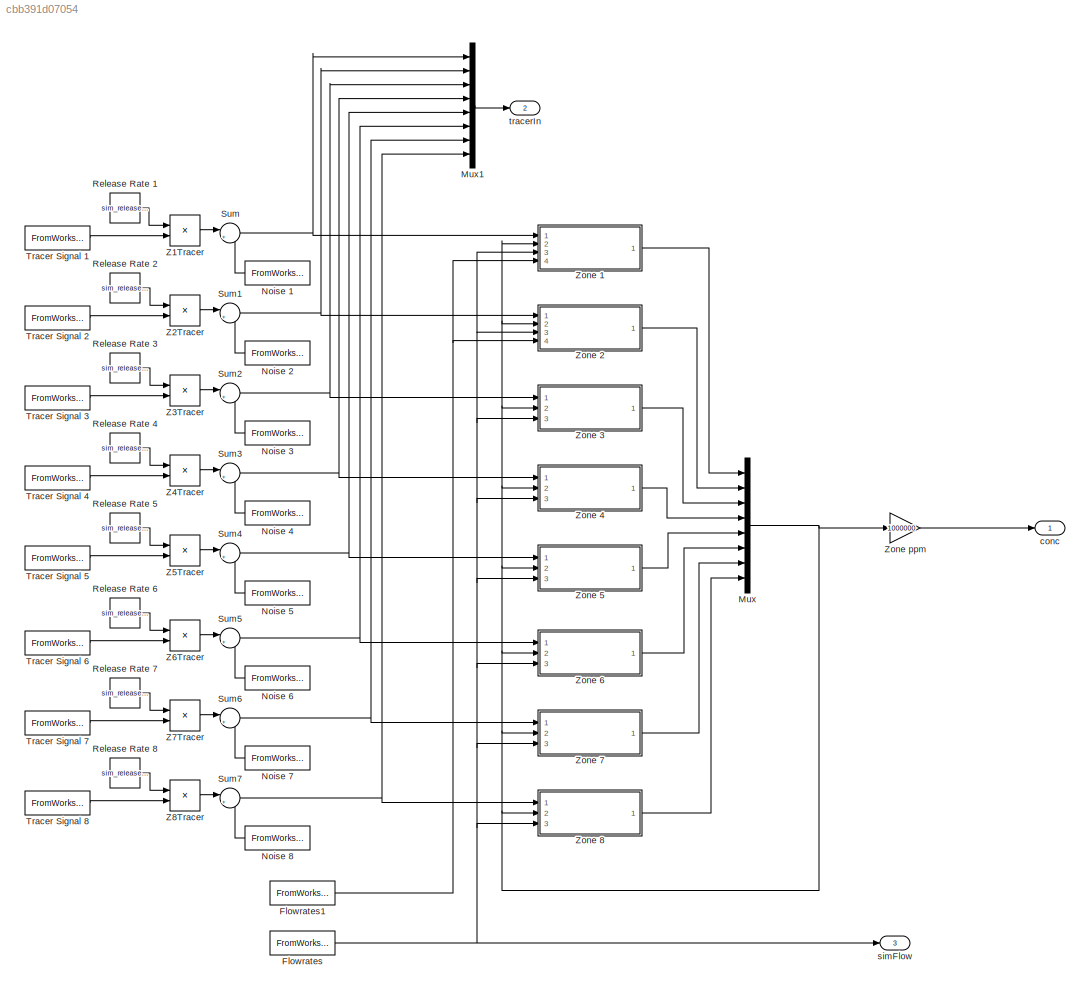
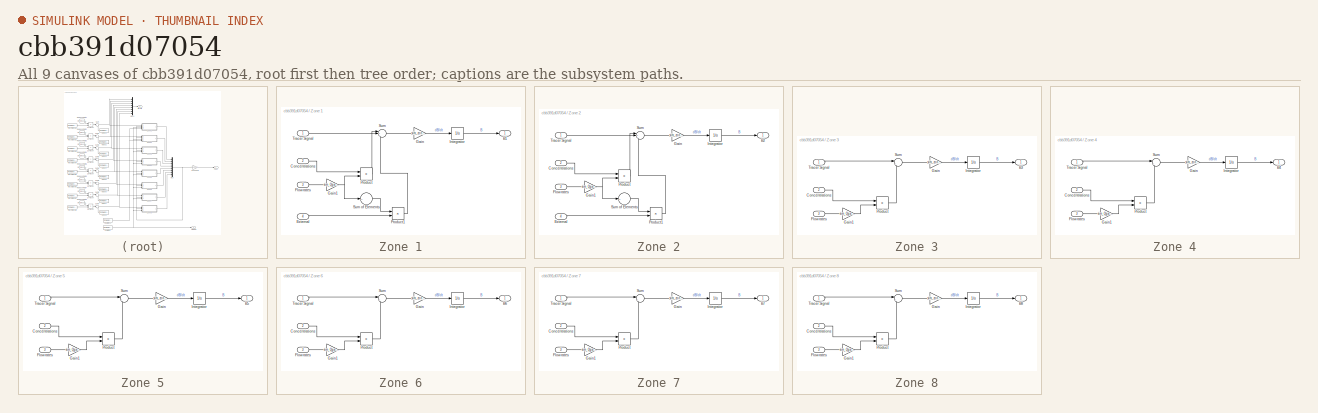
[diagram: thumbnail index - all 9 canvases of the model, root first then tree order]
MODEL slx_cbb391d07054
KIND model
CONFIG AbsTol = auto
CONFIG FixedStep = sim_stepSize
CONFIG MaxStep = auto
CONFIG MinStep = auto
CONFIG RelTol = auto
CONFIG SampleTimeConstraint = Unconstrained
CONFIG Solver = ode5
CONFIG SolverMode = Auto
CONFIG SolverName = ode5
CONFIG StartTime = 0.0
CONFIG StopTime = 10
BLOCK [FromWorkspace] Flowrates
  OutputAfterFinalValue = Holding final value
  SampleTime = 0
  VariableName = sim_Q
  ZeroCross = on
BLOCK [FromWorkspace] Flowrates1
  OutputAfterFinalValue = Holding final value
  SampleTime = 0
  VariableName = sim_external
  ZeroCross = on
BLOCK [Mux] Mux
  DisplayOption = bar
  Inputs = 8
  Ports = [8, 1]
BLOCK [Mux] Mux1
  DisplayOption = bar
  Inputs = 8
  Ports = [8, 1]
BLOCK [FromWorkspace] Noise 1
  Interpolate = off
  OutputAfterFinalValue = Holding final value
  SampleTime = 0
  VariableName = sim_nSchedule{1}
  ZeroCross = on
BLOCK [FromWorkspace] Noise 2
  Interpolate = off
  OutputAfterFinalValue = Holding final value
  SampleTime = 0
  VariableName = sim_nSchedule{2}
  ZeroCross = on
BLOCK [FromWorkspace] Noise 3
  Interpolate = off
  OutputAfterFinalValue = Holding final value
  SampleTime = 0
  VariableName = sim_nSchedule{3}
  ZeroCross = on
BLOCK [FromWorkspace] Noise 4 
  Interpolate = off
  OutputAfterFinalValue = Holding final value
  SampleTime = 0
  VariableName = sim_nSchedule{4}
  ZeroCross = on
BLOCK [FromWorkspace] Noise 5
  Interpolate = off
  OutputAfterFinalValue = Holding final value
  SampleTime = 0
  VariableName = sim_nSchedule{5}
  ZeroCross = on
BLOCK [FromWorkspace] Noise 6
  Interpolate = off
  OutputAfterFinalValue = Holding final value
  SampleTime = 0
  VariableName = sim_nSchedule{6}
  ZeroCross = on
BLOCK [FromWorkspace] Noise 7
  Interpolate = off
  OutputAfterFinalValue = Holding final value
  SampleTime = 0
  VariableName = sim_nSchedule{7}
  ZeroCross = on
BLOCK [FromWorkspace] Noise 8
  Interpolate = off
  OutputAfterFinalValue = Holding final value
  SampleTime = 0
  VariableName = sim_nSchedule{8}
  ZeroCross = on
BLOCK [Constant] Release Rate 1
  Value = sim_releaseRate(1)
BLOCK [Constant] Release Rate 2
  Value = sim_releaseRate(2)
BLOCK [Constant] Release Rate 3
  Value = sim_releaseRate(3)
BLOCK [Constant] Release Rate 4
  Value = sim_releaseRate(4)
BLOCK [Constant] Release Rate 5
  Value = sim_releaseRate(5)
BLOCK [Constant] Release Rate 6
  Value = sim_releaseRate(6)
BLOCK [Constant] Release Rate 7
  Value = sim_releaseRate(7)
BLOCK [Constant] Release Rate 8
  Value = sim_releaseRate(8)
BLOCK [Sum] Sum
  IconShape = round
  InputSameDT = off
  Inputs = |++
  OutDataTypeStr = Inherit: Inherit via internal rule
  Ports = [2, 1]
  SaturateOnIntegerOverflow = off
BLOCK [Sum] Sum1
  IconShape = round
  InputSameDT = off
  Inputs = |++
  OutDataTypeStr = Inherit: Inherit via internal rule
  Ports = [2, 1]
  SaturateOnIntegerOverflow = off
BLOCK [Sum] Sum2
  IconShape = round
  InputSameDT = off
  Inputs = |++
  OutDataTypeStr = Inherit: Inherit via internal rule
  Ports = [2, 1]
  SaturateOnIntegerOverflow = off
BLOCK [Sum] Sum3
  IconShape = round
  InputSameDT = off
  Inputs = |++
  OutDataTypeStr = Inherit: Inherit via internal rule
  Ports = [2, 1]
  SaturateOnIntegerOverflow = off
BLOCK [Sum] Sum4
  IconShape = round
  InputSameDT = off
  Inputs = |++
  OutDataTypeStr = Inherit: Inherit via internal rule
  Ports = [2, 1]
  SaturateOnIntegerOverflow = off
BLOCK [Sum] Sum5
  IconShape = round
  InputSameDT = off
  Inputs = |++
  OutDataTypeStr = Inherit: Inherit via internal rule
  Ports = [2, 1]
  SaturateOnIntegerOverflow = off
BLOCK [Sum] Sum6
  IconShape = round
  InputSameDT = off
  Inputs = |++
  OutDataTypeStr = Inherit: Inherit via internal rule
  Ports = [2, 1]
  SaturateOnIntegerOverflow = off
BLOCK [Sum] Sum7
  IconShape = round
  InputSameDT = off
  Inputs = |++
  OutDataTypeStr = Inherit: Inherit via internal rule
  Ports = [2, 1]
  SaturateOnIntegerOverflow = off
BLOCK [FromWorkspace] Tracer Signal 1
  Interpolate = off
  OutputAfterFinalValue = Holding final value
  SampleTime = 0
  VariableName = sim_tSchedule{1}
  ZeroCross = on
BLOCK [FromWorkspace] Tracer Signal 2
  Interpolate = off
  OutputAfterFinalValue = Holding final value
  SampleTime = 0
  VariableName = sim_tSchedule{2}
  ZeroCross = on
BLOCK [FromWorkspace] Tracer Signal 3
  Interpolate = off
  OutputAfterFinalValue = Holding final value
  SampleTime = 0
  VariableName = sim_tSchedule{3}
  ZeroCross = on
BLOCK [FromWorkspace] Tracer Signal 4
  Interpolate = off
  OutputAfterFinalValue = Holding final value
  SampleTime = 0
  VariableName = sim_tSchedule{4}
  ZeroCross = on
BLOCK [FromWorkspace] Tracer Signal 5
  Interpolate = off
  OutputAfterFinalValue = Holding final value
  SampleTime = 0
  VariableName = sim_tSchedule{5}
  ZeroCross = on
BLOCK [FromWorkspace] Tracer Signal 6
  Interpolate = off
  OutputAfterFinalValue = Holding final value
  SampleTime = 0
  VariableName = sim_tSchedule{6}
  ZeroCross = on
BLOCK [FromWorkspace] Tracer Signal 7
  Interpolate = off
  OutputAfterFinalValue = Holding final value
  SampleTime = 0
  VariableName = sim_tSchedule{7}
  ZeroCross = on
BLOCK [FromWorkspace] Tracer Signal 8
  Interpolate = off
  OutputAfterFinalValue = Holding final value
  SampleTime = 0
  VariableName = sim_tSchedule{8}
  ZeroCross = on
BLOCK [Product] Z1Tracer
  InputSameDT = off
  OutDataTypeStr = Inherit: Inherit via internal rule
  Ports = [2, 1]
  SaturateOnIntegerOverflow = off
BLOCK [Product] Z2Tracer
  InputSameDT = off
  OutDataTypeStr = Inherit: Inherit via internal rule
  Ports = [2, 1]
  SaturateOnIntegerOverflow = off
BLOCK [Product] Z3Tracer
  InputSameDT = off
  OutDataTypeStr = Inherit: Inherit via internal rule
  Ports = [2, 1]
  SaturateOnIntegerOverflow = off
BLOCK [Product] Z4Tracer
  InputSameDT = off
  OutDataTypeStr = Inherit: Inherit via internal rule
  Ports = [2, 1]
  SaturateOnIntegerOverflow = off
BLOCK [Product] Z5Tracer
  InputSameDT = off
  OutDataTypeStr = Inherit: Inherit via internal rule
  Ports = [2, 1]
  SaturateOnIntegerOverflow = off
BLOCK [Product] Z6Tracer
  InputSameDT = off
  OutDataTypeStr = Inherit: Inherit via internal rule
  Ports = [2, 1]
  SaturateOnIntegerOverflow = off
BLOCK [Product] Z7Tracer
  InputSameDT = off
  OutDataTypeStr = Inherit: Inherit via internal rule
  Ports = [2, 1]
  SaturateOnIntegerOverflow = off
BLOCK [Product] Z8Tracer
  InputSameDT = off
  OutDataTypeStr = Inherit: Inherit via internal rule
  Ports = [2, 1]
  SaturateOnIntegerOverflow = off
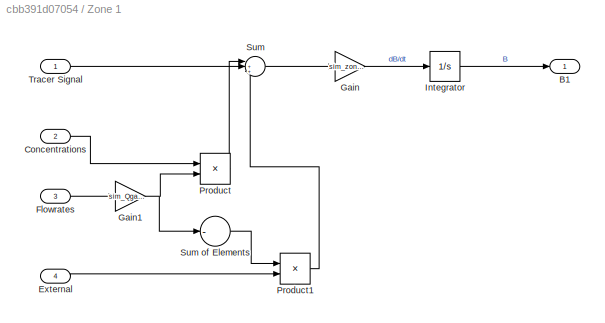
BLOCK [SubSystem] Zone 1
  Ports = [4, 1]
  RequestExecContextInheritance = off
BLOCK [Outport] Zone 1/B1
  IconDisplay = Port number
BLOCK [Inport] Zone 1/Concentrations
  IconDisplay = Port number
  Port = 2
BLOCK [Inport] Zone 1/External
  IconDisplay = Port number
  Port = 4
BLOCK [Inport] Zone 1/Flowrates
  IconDisplay = Port number
  Port = 3
BLOCK [Gain] Zone 1/Gain
  Gain = sim_zoneVolGain(1)
  OutDataTypeStr = Inherit: Inherit via internal rule
  ParamDataTypeStr = Inherit: Inherit via internal rule
  SaturateOnIntegerOverflow = off
BLOCK [Gain] Zone 1/Gain1
  Gain = sim_Qgain{1}
  Multiplication = Matrix(K*u)
  OutDataTypeStr = Inherit: Inherit via internal rule
  ParamDataTypeStr = Inherit: Inherit via internal rule
  SaturateOnIntegerOverflow = off
BLOCK [Integrator] Zone 1/Integrator
  InitialCondition = sim_external(1,2)
  Ports = [1, 1]
BLOCK [Product] Zone 1/Product
  InputSameDT = off
  Multiplication = Matrix(*)
  OutDataTypeStr = Inherit: Inherit via internal rule
  Ports = [2, 1]
  SaturateOnIntegerOverflow = off
BLOCK [Product] Zone 1/Product1
  InputSameDT = off
  OutDataTypeStr = Inherit: Inherit via internal rule
  Ports = [2, 1]
  SaturateOnIntegerOverflow = off
BLOCK [Sum] Zone 1/Sum
  IconShape = round
  InputSameDT = off
  Inputs = |+++
  OutDataTypeStr = Inherit: Inherit via internal rule
  Ports = [3, 1]
  SaturateOnIntegerOverflow = off
BLOCK [Sum] Zone 1/Sum of Elements
  InputSameDT = off
  Inputs = -
  OutDataTypeStr = Inherit: Inherit via internal rule
  Ports = [1, 1]
  SaturateOnIntegerOverflow = off
BLOCK [Inport] Zone 1/Tracer Signal
  IconDisplay = Port number
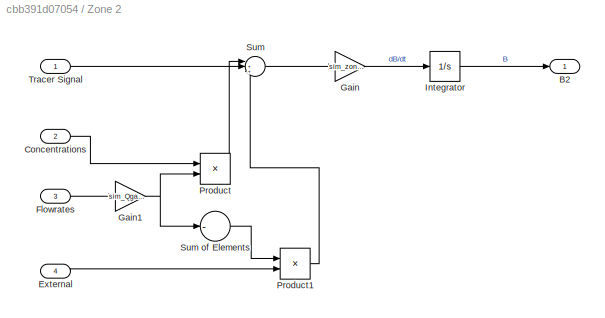
BLOCK [SubSystem] Zone 2
  Ports = [4, 1]
  RequestExecContextInheritance = off
BLOCK [Outport] Zone 2/B2
  IconDisplay = Port number
BLOCK [Inport] Zone 2/Concentrations
  IconDisplay = Port number
  Port = 2
BLOCK [Inport] Zone 2/External
  IconDisplay = Port number
  Port = 4
BLOCK [Inport] Zone 2/Flowrates
  IconDisplay = Port number
  Port = 3
BLOCK [Gain] Zone 2/Gain
  Gain = sim_zoneVolGain(2)
  OutDataTypeStr = Inherit: Inherit via internal rule
  ParamDataTypeStr = Inherit: Inherit via internal rule
  SaturateOnIntegerOverflow = off
BLOCK [Gain] Zone 2/Gain1
  Gain = sim_Qgain{2}
  Multiplication = Matrix(K*u)
  OutDataTypeStr = Inherit: Inherit via internal rule
  ParamDataTypeStr = Inherit: Inherit via internal rule
  SaturateOnIntegerOverflow = off
BLOCK [Integrator] Zone 2/Integrator
  InitialCondition = sim_external(1,2)
  Ports = [1, 1]
BLOCK [Product] Zone 2/Product
  InputSameDT = off
  Multiplication = Matrix(*)
  OutDataTypeStr = Inherit: Inherit via internal rule
  Ports = [2, 1]
  SaturateOnIntegerOverflow = off
BLOCK [Product] Zone 2/Product1
  InputSameDT = off
  OutDataTypeStr = Inherit: Inherit via internal rule
  Ports = [2, 1]
  SaturateOnIntegerOverflow = off
BLOCK [Sum] Zone 2/Sum
  IconShape = round
  InputSameDT = off
  Inputs = |+++
  OutDataTypeStr = Inherit: Inherit via internal rule
  Ports = [3, 1]
  SaturateOnIntegerOverflow = off
BLOCK [Sum] Zone 2/Sum of Elements
  InputSameDT = off
  Inputs = -
  OutDataTypeStr = Inherit: Inherit via internal rule
  Ports = [1, 1]
  SaturateOnIntegerOverflow = off
BLOCK [Inport] Zone 2/Tracer Signal
  IconDisplay = Port number
BLOCK [SubSystem] Zone 3
  Ports = [3, 1]
  RequestExecContextInheritance = off
BLOCK [Outport] Zone 3/B3
  IconDisplay = Port number
BLOCK [Inport] Zone 3/Concentrations
  IconDisplay = Port number
  Port = 2
BLOCK [Inport] Zone 3/Flowrates
  IconDisplay = Port number
  Port = 3
BLOCK [Gain] Zone 3/Gain
  Gain = sim_zoneVolGain(3)
  OutDataTypeStr = Inherit: Inherit via internal rule
  ParamDataTypeStr = Inherit: Inherit via internal rule
  SaturateOnIntegerOverflow = off
BLOCK [Gain] Zone 3/Gain1
  Gain = sim_Qgain{3}
  Multiplication = Matrix(K*u)
  OutDataTypeStr = Inherit: Inherit via internal rule
  ParamDataTypeStr = Inherit: Inherit via internal rule
  SaturateOnIntegerOverflow = off
BLOCK [Integrator] Zone 3/Integrator
  Ports = [1, 1]
BLOCK [Product] Zone 3/Product
  InputSameDT = off
  Multiplication = Matrix(*)
  OutDataTypeStr = Inherit: Inherit via internal rule
  Ports = [2, 1]
  SaturateOnIntegerOverflow = off
BLOCK [Sum] Zone 3/Sum
  IconShape = round
  InputSameDT = off
  Inputs = |++
  OutDataTypeStr = Inherit: Inherit via internal rule
  Ports = [2, 1]
  SaturateOnIntegerOverflow = off
BLOCK [Inport] Zone 3/Tracer Signal
  IconDisplay = Port number
BLOCK [SubSystem] Zone 4
  Ports = [3, 1]
  RequestExecContextInheritance = off
BLOCK [Outport] Zone 4/B4
  IconDisplay = Port number
BLOCK [Inport] Zone 4/Concentrations
  IconDisplay = Port number
  Port = 2
BLOCK [Inport] Zone 4/Flowrates
  IconDisplay = Port number
  Port = 3
BLOCK [Gain] Zone 4/Gain
  Gain = sim_zoneVolGain(4)
  OutDataTypeStr = Inherit: Inherit via internal rule
  ParamDataTypeStr = Inherit: Inherit via internal rule
  SaturateOnIntegerOverflow = off
BLOCK [Gain] Zone 4/Gain1
  Gain = sim_Qgain{4}
  Multiplication = Matrix(K*u)
  OutDataTypeStr = Inherit: Inherit via internal rule
  ParamDataTypeStr = Inherit: Inherit via internal rule
  SaturateOnIntegerOverflow = off
BLOCK [Integrator] Zone 4/Integrator
  Ports = [1, 1]
BLOCK [Product] Zone 4/Product
  InputSameDT = off
  Multiplication = Matrix(*)
  OutDataTypeStr = Inherit: Inherit via internal rule
  Ports = [2, 1]
  SaturateOnIntegerOverflow = off
BLOCK [Sum] Zone 4/Sum
  IconShape = round
  InputSameDT = off
  Inputs = |++
  OutDataTypeStr = Inherit: Inherit via internal rule
  Ports = [2, 1]
  SaturateOnIntegerOverflow = off
BLOCK [Inport] Zone 4/Tracer Signal
  IconDisplay = Port number
BLOCK [SubSystem] Zone 5
  Ports = [3, 1]
  RequestExecContextInheritance = off
BLOCK [Outport] Zone 5/B5
  IconDisplay = Port number
BLOCK [Inport] Zone 5/Concentrations
  IconDisplay = Port number
  Port = 2
BLOCK [Inport] Zone 5/Flowrates
  IconDisplay = Port number
  Port = 3
BLOCK [Gain] Zone 5/Gain
  Gain = sim_zoneVolGain(5)
  OutDataTypeStr = Inherit: Inherit via internal rule
  ParamDataTypeStr = Inherit: Inherit via internal rule
  SaturateOnIntegerOverflow = off
BLOCK [Gain] Zone 5/Gain1
  Gain = sim_Qgain{5}
  Multiplication = Matrix(K*u)
  OutDataTypeStr = Inherit: Inherit via internal rule
  ParamDataTypeStr = Inherit: Inherit via internal rule
  SaturateOnIntegerOverflow = off
BLOCK [Integrator] Zone 5/Integrator
  Ports = [1, 1]
BLOCK [Product] Zone 5/Product
  InputSameDT = off
  Multiplication = Matrix(*)
  OutDataTypeStr = Inherit: Inherit via internal rule
  Ports = [2, 1]
  SaturateOnIntegerOverflow = off
BLOCK [Sum] Zone 5/Sum
  IconShape = round
  InputSameDT = off
  Inputs = |++
  OutDataTypeStr = Inherit: Inherit via internal rule
  Ports = [2, 1]
  SaturateOnIntegerOverflow = off
BLOCK [Inport] Zone 5/Tracer Signal
  IconDisplay = Port number
BLOCK [SubSystem] Zone 6
  Ports = [3, 1]
  RequestExecContextInheritance = off
BLOCK [Outport] Zone 6/B6
  IconDisplay = Port number
BLOCK [Inport] Zone 6/Concentrations
  IconDisplay = Port number
  Port = 2
BLOCK [Inport] Zone 6/Flowrates
  IconDisplay = Port number
  Port = 3
BLOCK [Gain] Zone 6/Gain
  Gain = sim_zoneVolGain(6)
  OutDataTypeStr = Inherit: Inherit via internal rule
  ParamDataTypeStr = Inherit: Inherit via internal rule
  SaturateOnIntegerOverflow = off
BLOCK [Gain] Zone 6/Gain1
  Gain = sim_Qgain{6}
  Multiplication = Matrix(K*u)
  OutDataTypeStr = Inherit: Inherit via internal rule
  ParamDataTypeStr = Inherit: Inherit via internal rule
  SaturateOnIntegerOverflow = off
BLOCK [Integrator] Zone 6/Integrator
  Ports = [1, 1]
BLOCK [Product] Zone 6/Product
  InputSameDT = off
  Multiplication = Matrix(*)
  OutDataTypeStr = Inherit: Inherit via internal rule
  Ports = [2, 1]
  SaturateOnIntegerOverflow = off
BLOCK [Sum] Zone 6/Sum
  IconShape = round
  InputSameDT = off
  Inputs = |++
  OutDataTypeStr = Inherit: Inherit via internal rule
  Ports = [2, 1]
  SaturateOnIntegerOverflow = off
BLOCK [Inport] Zone 6/Tracer Signal
  IconDisplay = Port number
BLOCK [SubSystem] Zone 7
  Ports = [3, 1]
  RequestExecContextInheritance = off
BLOCK [Outport] Zone 7/B7
  IconDisplay = Port number
BLOCK [Inport] Zone 7/Concentrations
  IconDisplay = Port number
  Port = 2
BLOCK [Inport] Zone 7/Flowrates
  IconDisplay = Port number
  Port = 3
BLOCK [Gain] Zone 7/Gain
  Gain = sim_zoneVolGain(7)
  OutDataTypeStr = Inherit: Inherit via internal rule
  ParamDataTypeStr = Inherit: Inherit via internal rule
  SaturateOnIntegerOverflow = off
BLOCK [Gain] Zone 7/Gain1
  Gain = sim_Qgain{7}
  Multiplication = Matrix(K*u)
  OutDataTypeStr = Inherit: Inherit via internal rule
  ParamDataTypeStr = Inherit: Inherit via internal rule
  SaturateOnIntegerOverflow = off
BLOCK [Integrator] Zone 7/Integrator
  Ports = [1, 1]
BLOCK [Product] Zone 7/Product
  InputSameDT = off
  Multiplication = Matrix(*)
  OutDataTypeStr = Inherit: Inherit via internal rule
  Ports = [2, 1]
  SaturateOnIntegerOverflow = off
BLOCK [Sum] Zone 7/Sum
  IconShape = round
  InputSameDT = off
  Inputs = |++
  OutDataTypeStr = Inherit: Inherit via internal rule
  Ports = [2, 1]
  SaturateOnIntegerOverflow = off
BLOCK [Inport] Zone 7/Tracer Signal
  IconDisplay = Port number
BLOCK [SubSystem] Zone 8
  Ports = [3, 1]
  RequestExecContextInheritance = off
BLOCK [Outport] Zone 8/B8
  IconDisplay = Port number
BLOCK [Inport] Zone 8/Concentrations
  IconDisplay = Port number
  Port = 2
BLOCK [Inport] Zone 8/Flowrates
  IconDisplay = Port number
  Port = 3
BLOCK [Gain] Zone 8/Gain
  Gain = sim_zoneVolGain(8)
  OutDataTypeStr = Inherit: Inherit via internal rule
  ParamDataTypeStr = Inherit: Inherit via internal rule
  SaturateOnIntegerOverflow = off
BLOCK [Gain] Zone 8/Gain1
  Gain = sim_Qgain{8}
  Multiplication = Matrix(K*u)
  OutDataTypeStr = Inherit: Inherit via internal rule
  ParamDataTypeStr = Inherit: Inherit via internal rule
  SaturateOnIntegerOverflow = off
BLOCK [Integrator] Zone 8/Integrator
  Ports = [1, 1]
BLOCK [Product] Zone 8/Product
  InputSameDT = off
  Multiplication = Matrix(*)
  OutDataTypeStr = Inherit: Inherit via internal rule
  Ports = [2, 1]
  SaturateOnIntegerOverflow = off
BLOCK [Sum] Zone 8/Sum
  IconShape = round
  InputSameDT = off
  Inputs = |++
  OutDataTypeStr = Inherit: Inherit via internal rule
  Ports = [2, 1]
  SaturateOnIntegerOverflow = off
BLOCK [Inport] Zone 8/Tracer Signal
  IconDisplay = Port number
BLOCK [Gain] Zone ppm
  Gain = 1000000
  OutDataTypeStr = Inherit: Inherit via internal rule
  ParamDataTypeStr = Inherit: Inherit via internal rule
  SaturateOnIntegerOverflow = off
BLOCK [Outport] conc
  IconDisplay = Port number
BLOCK [Outport] simFlow
  IconDisplay = Port number
  Port = 3
BLOCK [Outport] tracerIn
  IconDisplay = Port number
  Port = 2
NET Flowrates1:1 -> Zone 1:4, Zone 2:4
NET Flowrates:1 -> Zone 1:3, Zone 2:3, Zone 3:3, Zone 4:3, Zone 5:3, Zone 6:3, Zone 7:3, Zone 8:3, simFlow:1
LINE Mux1:1 -> tracerIn:1
NET Mux:1 -> Zone 1:2, Zone 2:2, Zone 3:2, Zone 4:2, Zone 5:2, Zone 6:2, Zone 7:2, Zone 8:2, Zone ppm:1
LINE Noise 1:1 -> Sum:2
LINE Noise 2:1 -> Sum1:2
LINE Noise 3:1 -> Sum2:2
LINE Noise 4 :1 -> Sum3:2
LINE Noise 5:1 -> Sum4:2
LINE Noise 6:1 -> Sum5:2
LINE Noise 7:1 -> Sum6:2
LINE Noise 8:1 -> Sum7:2
LINE Release Rate 1:1 -> Z1Tracer:1
LINE Release Rate 2:1 -> Z2Tracer:1
LINE Release Rate 3:1 -> Z3Tracer:1
LINE Release Rate 4:1 -> Z4Tracer:1
LINE Release Rate 5:1 -> Z5Tracer:1
LINE Release Rate 6:1 -> Z6Tracer:1
LINE Release Rate 7:1 -> Z7Tracer:1
LINE Release Rate 8:1 -> Z8Tracer:1
NET Sum1:1 -> Mux1:2, Zone 2:1
NET Sum2:1 -> Mux1:3, Zone 3:1
NET Sum3:1 -> Mux1:4, Zone 4:1
NET Sum4:1 -> Mux1:5, Zone 5:1
NET Sum5:1 -> Mux1:6, Zone 6:1
NET Sum6:1 -> Mux1:7, Zone 7:1
NET Sum7:1 -> Mux1:8, Zone 8:1
NET Sum:1 -> Mux1:1, Zone 1:1
LINE Tracer Signal 1:1 -> Z1Tracer:2
LINE Tracer Signal 2:1 -> Z2Tracer:2
LINE Tracer Signal 3:1 -> Z3Tracer:2
LINE Tracer Signal 4:1 -> Z4Tracer:2
LINE Tracer Signal 5:1 -> Z5Tracer:2
LINE Tracer Signal 6:1 -> Z6Tracer:2
LINE Tracer Signal 7:1 -> Z7Tracer:2
LINE Tracer Signal 8:1 -> Z8Tracer:2
LINE Z1Tracer:1 -> Sum:1
LINE Z2Tracer:1 -> Sum1:1
LINE Z3Tracer:1 -> Sum2:1
LINE Z4Tracer:1 -> Sum3:1
LINE Z5Tracer:1 -> Sum4:1
LINE Z6Tracer:1 -> Sum5:1
LINE Z7Tracer:1 -> Sum6:1
LINE Z8Tracer:1 -> Sum7:1
LINE Zone 1/Concentrations:1 -> Zone 1/Product:1
LINE Zone 1/External:1 -> Zone 1/Product1:2
LINE Zone 1/Flowrates:1 -> Zone 1/Gain1:1
NET Zone 1/Gain1:1 -> Zone 1/Product:2, Zone 1/Sum of Elements:1
LINE Zone 1/Gain:1 -> Zone 1/Integrator:1
LINE Zone 1/Integrator:1 -> Zone 1/B1:1
LINE Zone 1/Product1:1 -> Zone 1/Sum:3
LINE Zone 1/Product:1 -> Zone 1/Sum:2
LINE Zone 1/Sum of Elements:1 -> Zone 1/Product1:1
LINE Zone 1/Sum:1 -> Zone 1/Gain:1
LINE Zone 1/Tracer Signal:1 -> Zone 1/Sum:1
LINE Zone 1:1 -> Mux:1
LINE Zone 2/Concentrations:1 -> Zone 2/Product:1
LINE Zone 2/External:1 -> Zone 2/Product1:2
LINE Zone 2/Flowrates:1 -> Zone 2/Gain1:1
NET Zone 2/Gain1:1 -> Zone 2/Product:2, Zone 2/Sum of Elements:1
LINE Zone 2/Gain:1 -> Zone 2/Integrator:1
LINE Zone 2/Integrator:1 -> Zone 2/B2:1
LINE Zone 2/Product1:1 -> Zone 2/Sum:3
LINE Zone 2/Product:1 -> Zone 2/Sum:2
LINE Zone 2/Sum of Elements:1 -> Zone 2/Product1:1
LINE Zone 2/Sum:1 -> Zone 2/Gain:1
LINE Zone 2/Tracer Signal:1 -> Zone 2/Sum:1
LINE Zone 2:1 -> Mux:2
LINE Zone 3/Concentrations:1 -> Zone 3/Product:1
LINE Zone 3/Flowrates:1 -> Zone 3/Gain1:1
LINE Zone 3/Gain1:1 -> Zone 3/Product:2
LINE Zone 3/Gain:1 -> Zone 3/Integrator:1
LINE Zone 3/Integrator:1 -> Zone 3/B3:1
LINE Zone 3/Product:1 -> Zone 3/Sum:2
LINE Zone 3/Sum:1 -> Zone 3/Gain:1
LINE Zone 3/Tracer Signal:1 -> Zone 3/Sum:1
LINE Zone 3:1 -> Mux:3
LINE Zone 4/Concentrations:1 -> Zone 4/Product:1
LINE Zone 4/Flowrates:1 -> Zone 4/Gain1:1
LINE Zone 4/Gain1:1 -> Zone 4/Product:2
LINE Zone 4/Gain:1 -> Zone 4/Integrator:1
LINE Zone 4/Integrator:1 -> Zone 4/B4:1
LINE Zone 4/Product:1 -> Zone 4/Sum:2
LINE Zone 4/Sum:1 -> Zone 4/Gain:1
LINE Zone 4/Tracer Signal:1 -> Zone 4/Sum:1
LINE Zone 4:1 -> Mux:4
LINE Zone 5/Concentrations:1 -> Zone 5/Product:1
LINE Zone 5/Flowrates:1 -> Zone 5/Gain1:1
LINE Zone 5/Gain1:1 -> Zone 5/Product:2
LINE Zone 5/Gain:1 -> Zone 5/Integrator:1
LINE Zone 5/Integrator:1 -> Zone 5/B5:1
LINE Zone 5/Product:1 -> Zone 5/Sum:2
LINE Zone 5/Sum:1 -> Zone 5/Gain:1
LINE Zone 5/Tracer Signal:1 -> Zone 5/Sum:1
LINE Zone 5:1 -> Mux:5
LINE Zone 6/Concentrations:1 -> Zone 6/Product:1
LINE Zone 6/Flowrates:1 -> Zone 6/Gain1:1
LINE Zone 6/Gain1:1 -> Zone 6/Product:2
LINE Zone 6/Gain:1 -> Zone 6/Integrator:1
LINE Zone 6/Integrator:1 -> Zone 6/B6:1
LINE Zone 6/Product:1 -> Zone 6/Sum:2
LINE Zone 6/Sum:1 -> Zone 6/Gain:1
LINE Zone 6/Tracer Signal:1 -> Zone 6/Sum:1
LINE Zone 6:1 -> Mux:6
LINE Zone 7/Concentrations:1 -> Zone 7/Product:1
LINE Zone 7/Flowrates:1 -> Zone 7/Gain1:1
LINE Zone 7/Gain1:1 -> Zone 7/Product:2
LINE Zone 7/Gain:1 -> Zone 7/Integrator:1
LINE Zone 7/Integrator:1 -> Zone 7/B7:1
LINE Zone 7/Product:1 -> Zone 7/Sum:2
LINE Zone 7/Sum:1 -> Zone 7/Gain:1
LINE Zone 7/Tracer Signal:1 -> Zone 7/Sum:1
LINE Zone 7:1 -> Mux:7
LINE Zone 8/Concentrations:1 -> Zone 8/Product:1
LINE Zone 8/Flowrates:1 -> Zone 8/Gain1:1
LINE Zone 8/Gain1:1 -> Zone 8/Product:2
LINE Zone 8/Gain:1 -> Zone 8/Integrator:1
LINE Zone 8/Integrator:1 -> Zone 8/B8:1
LINE Zone 8/Product:1 -> Zone 8/Sum:2
LINE Zone 8/Sum:1 -> Zone 8/Gain:1
LINE Zone 8/Tracer Signal:1 -> Zone 8/Sum:1
LINE Zone 8:1 -> Mux:8
LINE Zone ppm:1 -> conc:1
note: NET lines group one-source signal fan-out (src -> all destinations, sorted); 1:1 wires keep LINE
